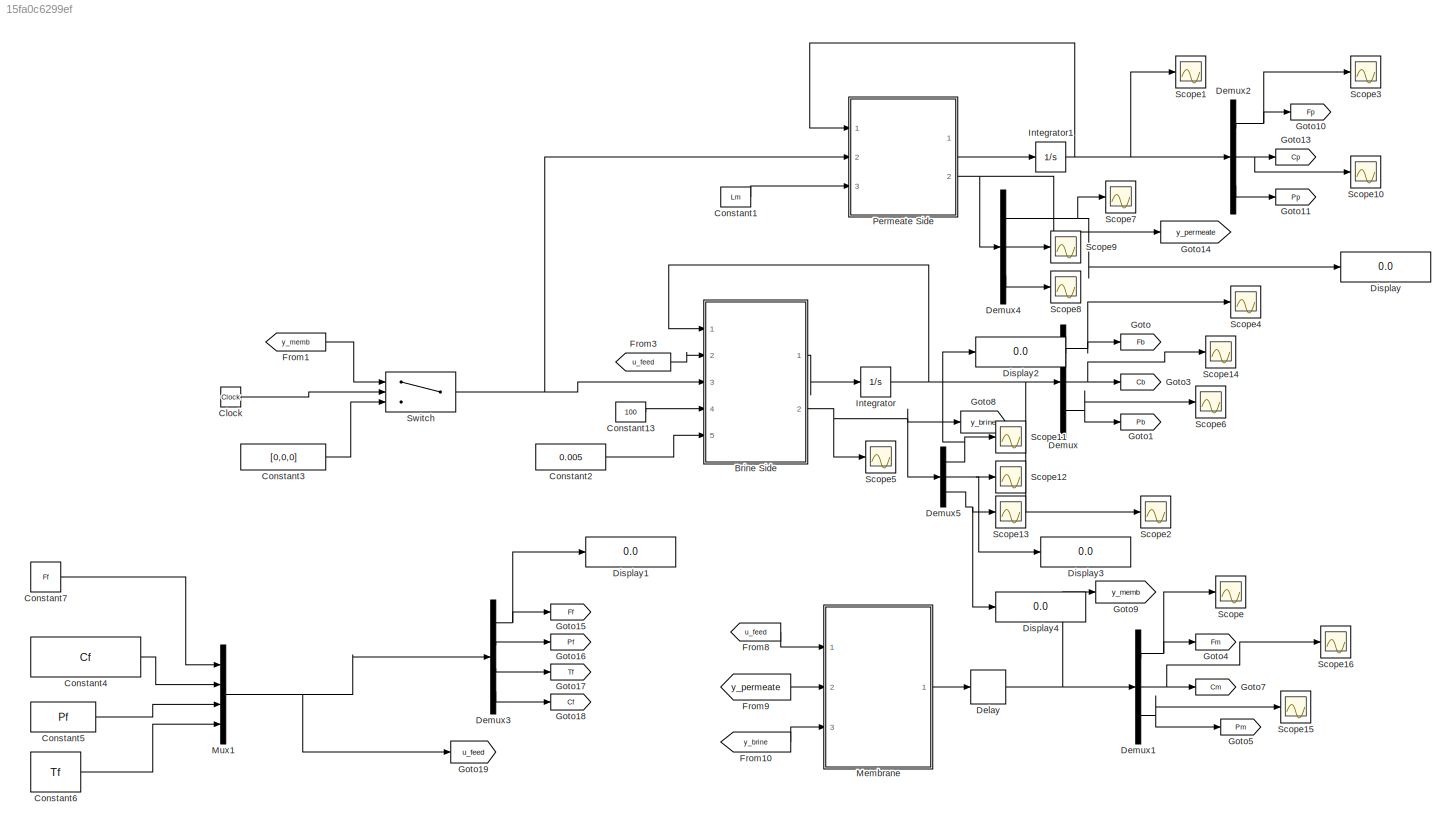
MODEL slx_15fa0c6299ef
KIND model
CONFIG AbsTol = auto
CONFIG EnableMultiTasking = off
CONFIG FixedStep = auto
CONFIG MaxStep = 1
CONFIG MinStep = auto
CONFIG RelTol = 1e-3
CONFIG SampleTimeConstraint = Unconstrained
CONFIG SolverName = VariableStepAuto
CONFIG StartTime = 0.0
CONFIG StopTime = 10000
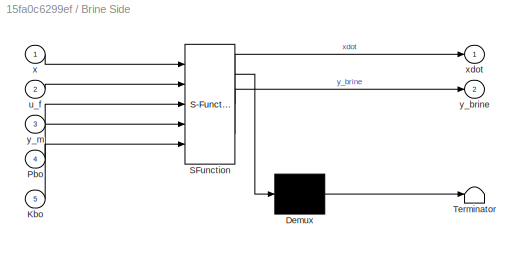
BLOCK [SubSystem] Brine Side
  ErrorFcn = Stateflow.Translate.translate
  PermitHierarchicalResolution = ExplicitOnly
  Ports = [5, 2]
  RequestExecContextInheritance = off
  SFBlockType = MATLAB Function
  TreatAsAtomicUnit = on
BLOCK [Demux] Brine Side/ Demux 
  Outputs = 1
  Ports = [1, 1]
BLOCK [S-Function] Brine Side/ SFunction 
  EnableBusSupport = on
  FunctionName = sf_sfun
  Parameters = Lb,phi_b
  PortCounts = [5 3]
  Ports = [5, 3]
  SFcnIsStateOwnerBlock = off
  SFunctionDeploymentMode = off
  Tag = Stateflow S-Function 1
BLOCK [Terminator] Brine Side/ Terminator 
BLOCK [Inport] Brine Side/Kbo
  Port = 5
BLOCK [Inport] Brine Side/Pbo
  Port = 4
BLOCK [Inport] Brine Side/u_f
  Port = 2
BLOCK [Inport] Brine Side/x
BLOCK [Outport] Brine Side/xdot
  VectorParamsAs1DForOutWhenUnconnected = off
BLOCK [Outport] Brine Side/y_brine
  Port = 2
  VectorParamsAs1DForOutWhenUnconnected = off
BLOCK [Inport] Brine Side/y_m
  Port = 3
BLOCK [Clock] Clock
BLOCK [Constant] Constant1
  Value = Lm
BLOCK [Constant] Constant13
  Value = 100
BLOCK [Constant] Constant2
  Value = 0.005
BLOCK [Constant] Constant3
  Value = [0,0,0]
BLOCK [Constant] Constant4
  Value = Cf
BLOCK [Constant] Constant5
  Value = Pf
BLOCK [Constant] Constant6
  Value = Tf
BLOCK [Constant] Constant7
  Value = Ff
BLOCK [Delay] Delay
  DelayLength = 1
  InputPortMap = u0
  Ports = [1, 1]
BLOCK [Demux] Demux
  Outputs = 3
  Ports = [1, 3]
BLOCK [Demux] Demux1
  Outputs = 3
  Ports = [1, 3]
BLOCK [Demux] Demux2
  Outputs = 3
  Ports = [1, 3]
BLOCK [Demux] Demux3
  Ports = [1, 4]
BLOCK [Demux] Demux4
  Outputs = 3
  Ports = [1, 3]
BLOCK [Demux] Demux5
  Outputs = 3
  Ports = [1, 3]
BLOCK [Display] Display
  Decimation = 1
  Ports = [1]
BLOCK [Display] Display1
  Decimation = 1
  Ports = [1]
BLOCK [Display] Display2
  Decimation = 1
  Ports = [1]
BLOCK [Display] Display3
  Decimation = 1
  Ports = [1]
BLOCK [Display] Display4
  Decimation = 1
  Ports = [1]
BLOCK [From] From1
  GotoTag = y_memb
BLOCK [From] From10
  GotoTag = y_brine
BLOCK [From] From3
  GotoTag = u_feed
BLOCK [From] From8
  GotoTag = u_feed
BLOCK [From] From9
  GotoTag = y_permeate
BLOCK [Goto] Goto
  GotoTag = Fb
BLOCK [Goto] Goto1
  GotoTag = Pb
BLOCK [Goto] Goto10
  GotoTag = Fp
BLOCK [Goto] Goto11
  GotoTag = Pp
BLOCK [Goto] Goto13
  GotoTag = Cp
BLOCK [Goto] Goto14
  GotoTag = y_permeate
BLOCK [Goto] Goto15
  GotoTag = Ff
BLOCK [Goto] Goto16
  GotoTag = Pf
BLOCK [Goto] Goto17
  GotoTag = Tf
BLOCK [Goto] Goto18
  GotoTag = Cf
BLOCK [Goto] Goto19
  GotoTag = u_feed
BLOCK [Goto] Goto3
  GotoTag = Cb
BLOCK [Goto] Goto4
  GotoTag = Fm
BLOCK [Goto] Goto5
  GotoTag = Pm
BLOCK [Goto] Goto7
  GotoTag = Cm
BLOCK [Goto] Goto8
  GotoTag = y_brine
BLOCK [Goto] Goto9
  GotoTag = y_memb
BLOCK [Integrator] Integrator
  InitialCondition = [1e2;10;2000]
  Ports = [1, 1]
BLOCK [Integrator] Integrator1
  InitialCondition = [1e1;0;100]
  Ports = [1, 1]
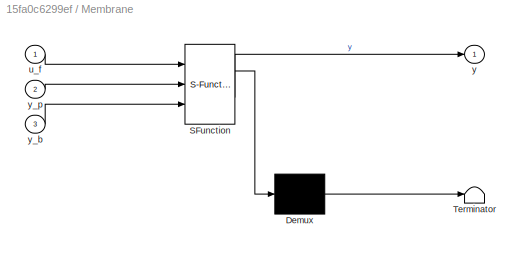
BLOCK [SubSystem] Membrane 
  ErrorFcn = Stateflow.Translate.translate
  PermitHierarchicalResolution = ExplicitOnly
  Ports = [3, 1]
  RequestExecContextInheritance = off
  SFBlockType = MATLAB Function
  TreatAsAtomicUnit = on
BLOCK [Demux] Membrane / Demux 
  Outputs = 1
  Ports = [1, 1]
BLOCK [S-Function] Membrane / SFunction 
  EnableBusSupport = on
  FunctionName = sf_sfun
  Parameters = A0,B0,R,T0,aT,bT,d0,di,eta,l,ls,ro_p
  PortCounts = [3 2]
  Ports = [3, 2]
  SFcnIsStateOwnerBlock = off
  SFunctionDeploymentMode = off
  Tag = Stateflow S-Function 3
BLOCK [Terminator] Membrane / Terminator 
BLOCK [Inport] Membrane /u_f
BLOCK [Outport] Membrane /y
  VectorParamsAs1DForOutWhenUnconnected = off
BLOCK [Inport] Membrane /y_b
  Port = 3
BLOCK [Inport] Membrane /y_p
  Port = 2
BLOCK [Mux] Mux1
  DisplayOption = bar
  Ports = [4, 1]
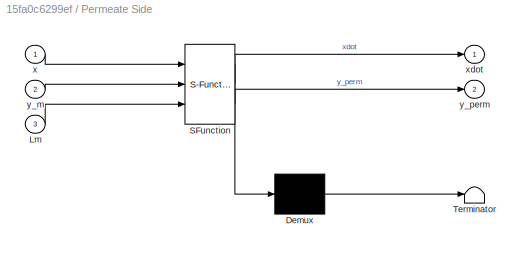
BLOCK [SubSystem] Permeate Side
  ErrorFcn = Stateflow.Translate.translate
  PermitHierarchicalResolution = ExplicitOnly
  Ports = [3, 2]
  RequestExecContextInheritance = off
  SFBlockType = MATLAB Function
  TreatAsAtomicUnit = on
BLOCK [Demux] Permeate Side/ Demux 
  Outputs = 1
  Ports = [1, 1]
BLOCK [S-Function] Permeate Side/ SFunction 
  EnableBusSupport = on
  FunctionName = sf_sfun
  Parameters = phi_m
  PortCounts = [3 3]
  Ports = [3, 3]
  SFcnIsStateOwnerBlock = off
  SFunctionDeploymentMode = off
  Tag = Stateflow S-Function 2
BLOCK [Terminator] Permeate Side/ Terminator 
BLOCK [Inport] Permeate Side/Lm
  Port = 3
BLOCK [Inport] Permeate Side/x
BLOCK [Outport] Permeate Side/xdot
  VectorParamsAs1DForOutWhenUnconnected = off
BLOCK [Inport] Permeate Side/y_m
  Port = 2
BLOCK [Outport] Permeate Side/y_perm
  Port = 2
  VectorParamsAs1DForOutWhenUnconnected = off
BLOCK [Scope] Scope
  Floating = off
  NumInputPorts = 1
  Ports = [1]
  ScopeSpecificationString = Simulink.scopes.TimeScopeBlockCfg('CurrentConfiguration', extmgr.ConfigurationSet(extmgr.Configuration('Core','General UI',true),extmgr.Configuration('Core','Source UI',true),extmgr.Configuration('Sources','WiredSimulink',true),extmgr.Configuration('Visuals','Time Domain',true,'SerializedDisplays',{struct('MinYLimReal','-0.00055','MaxYLimReal','0.00491','YLabelReal','','MinYLimMag','0.00000','MaxY...<+1401ch>
BLOCK [Scope] Scope1
  Floating = off
  NumInputPorts = 1
  Ports = [1]
  ScopeSpecificationString = Simulink.scopes.TimeScopeBlockCfg('CurrentConfiguration', extmgr.ConfigurationSet(extmgr.Configuration('Core','General UI',true),extmgr.Configuration('Core','Source UI',true),extmgr.Configuration('Sources','WiredSimulink',true,'DataLoggingVariableName','ScopeData1'),extmgr.Configuration('Visuals','Time Domain',true,'SerializedDisplays',{struct('MinYLimReal','-1248.875','MaxYLimReal','11249.875','Y...<+1472ch>
BLOCK [Scope] Scope10
  Floating = off
  NumInputPorts = 1
  Ports = [1]
  ScopeSpecificationString = Simulink.scopes.TimeScopeBlockCfg('CurrentConfiguration', extmgr.ConfigurationSet(extmgr.Configuration('Core','General UI',true),extmgr.Configuration('Core','Source UI',true),extmgr.Configuration('Sources','WiredSimulink',true,'DataLoggingVariableName','ScopeData6'),extmgr.Configuration('Visuals','Time Domain',true,'SerializedDisplays',{struct('MinYLimReal','-0.02775','MaxYLimReal','0.24975','YLab...<+1421ch>
BLOCK [Scope] Scope11
  Floating = off
  NumInputPorts = 1
  Ports = [1]
  ScopeSpecificationString = Simulink.scopes.TimeScopeBlockCfg('CurrentConfiguration', extmgr.ConfigurationSet(extmgr.Configuration('Core','General UI',true),extmgr.Configuration('Core','Source UI',true),extmgr.Configuration('Sources','WiredSimulink',true,'DataLoggingVariableName','ScopeData1'),extmgr.Configuration('Visuals','Time Domain',true,'SerializedDisplays',{struct('MinYLimReal','0.19299','MaxYLimReal','0.44257','YLabe...<+1419ch>
BLOCK [Scope] Scope12
  Floating = off
  NumInputPorts = 1
  Ports = [1]
  ScopeSpecificationString = Simulink.scopes.TimeScopeBlockCfg('CurrentConfiguration', extmgr.ConfigurationSet(extmgr.Configuration('Core','General UI',true),extmgr.Configuration('Core','Source UI',true),extmgr.Configuration('Sources','WiredSimulink',true,'DataLoggingVariableName','ScopeData2'),extmgr.Configuration('Visuals','Time Domain',true,'SerializedDisplays',{struct('MinYLimReal','8.2112','MaxYLimReal','26.09924','YLabe...<+1419ch>
BLOCK [Scope] Scope13
  Floating = off
  NumInputPorts = 1
  Ports = [1]
  ScopeSpecificationString = Simulink.scopes.TimeScopeBlockCfg('CurrentConfiguration', extmgr.ConfigurationSet(extmgr.Configuration('Core','General UI',true),extmgr.Configuration('Core','Source UI',true),extmgr.Configuration('Sources','WiredSimulink',true,'DataLoggingVariableName','ScopeData3'),extmgr.Configuration('Visuals','Time Domain',true,'SerializedDisplays',{struct('MinYLimReal','1365.48658','MaxYLimReal','7710.62078',...<+1443ch>
BLOCK [Scope] Scope14
  Floating = off
  NumInputPorts = 1
  Ports = [1]
  ScopeSpecificationString = Simulink.scopes.TimeScopeBlockCfg('CurrentConfiguration', extmgr.ConfigurationSet(extmgr.Configuration('Core','General UI',true),extmgr.Configuration('Core','Source UI',true),extmgr.Configuration('Sources','WiredSimulink',true,'DataLoggingVariableName','ScopeData1'),extmgr.Configuration('Visuals','Time Domain',true,'SerializedDisplays',{struct('MinYLimReal','8.50246','MaxYLimReal','23.47788','YLab...<+1422ch>
BLOCK [Scope] Scope15
  Floating = off
  NumInputPorts = 1
  Ports = [1]
  ScopeSpecificationString = Simulink.scopes.TimeScopeBlockCfg('CurrentConfiguration', extmgr.ConfigurationSet(extmgr.Configuration('Core','General UI',true),extmgr.Configuration('Core','Source UI',true),extmgr.Configuration('Sources','WiredSimulink',true,'DataLoggingVariableName','ScopeData2'),extmgr.Configuration('Visuals','Time Domain',true,'SerializedDisplays',{struct('MinYLimReal','-12.50321','MaxYLimReal','112.5289','YL...<+1446ch>
BLOCK [Scope] Scope16
  Floating = off
  NumInputPorts = 1
  Ports = [1]
  ScopeSpecificationString = Simulink.scopes.TimeScopeBlockCfg('CurrentConfiguration', extmgr.ConfigurationSet(extmgr.Configuration('Core','General UI',true),extmgr.Configuration('Core','Source UI',true),extmgr.Configuration('Sources','WiredSimulink',true,'DataLoggingVariableName','ScopeData3'),extmgr.Configuration('Visuals','Time Domain',true,'SerializedDisplays',{struct('MinYLimReal','-3.06995','MaxYLimReal','27.62958','YLa...<+1444ch>
BLOCK [Scope] Scope2
  Floating = off
  NumInputPorts = 1
  Ports = [1]
  ScopeSpecificationString = Simulink.scopes.TimeScopeBlockCfg('CurrentConfiguration', extmgr.ConfigurationSet(extmgr.Configuration('Core','General UI',true),extmgr.Configuration('Core','Source UI',true),extmgr.Configuration('Sources','WiredSimulink',true,'DataLoggingVariableName','ScopeData2'),extmgr.Configuration('Visuals','Time Domain',true,'SerializedDisplays',{struct('MinYLimReal','-873.26342','MaxYLimReal','7959.37078',...<+1473ch>
BLOCK [Scope] Scope3
  Floating = off
  NumInputPorts = 1
  Ports = [1]
  ScopeSpecificationString = Simulink.scopes.TimeScopeBlockCfg('CurrentConfiguration', extmgr.ConfigurationSet(extmgr.Configuration('Core','General UI',true),extmgr.Configuration('Core','Source UI',true),extmgr.Configuration('Sources','WiredSimulink',true,'DataLoggingVariableName','ScopeData3'),extmgr.Configuration('Visuals','Time Domain',true,'SerializedDisplays',{struct('MinYLimReal','90000.00000','MaxYLimReal','110000.0000...<+1455ch>
BLOCK [Scope] Scope4
  Floating = off
  NumInputPorts = 1
  Ports = [1]
  ScopeSpecificationString = Simulink.scopes.TimeScopeBlockCfg('CurrentConfiguration', extmgr.ConfigurationSet(extmgr.Configuration('Core','General UI',true),extmgr.Configuration('Core','Source UI',true),extmgr.Configuration('Sources','WiredSimulink',true,'DataLoggingVariableName','ScopeData4'),extmgr.Configuration('Visuals','Time Domain',true,'SerializedDisplays',{struct('MinYLimReal','-91.38831','MaxYLimReal','1822.49481','...<+1434ch>
BLOCK [Scope] Scope5
  Floating = off
  NumInputPorts = 1
  Ports = [1]
  ScopeSpecificationString = Simulink.scopes.TimeScopeBlockCfg('CurrentConfiguration', extmgr.ConfigurationSet(extmgr.Configuration('Core','General UI',true),extmgr.Configuration('Core','Source UI',true),extmgr.Configuration('Sources','WiredSimulink',true,'DataLoggingVariableName','ScopeData1'),extmgr.Configuration('Visuals','Time Domain',true,'SerializedDisplays',{struct('MinYLimReal','-884.12112','MaxYLimReal','7960.57719',...<+1497ch>
BLOCK [Scope] Scope6
  Floating = off
  NumInputPorts = 1
  Ports = [1]
  ScopeSpecificationString = Simulink.scopes.TimeScopeBlockCfg('CurrentConfiguration', extmgr.ConfigurationSet(extmgr.Configuration('Core','General UI',true),extmgr.Configuration('Core','Source UI',true),extmgr.Configuration('Sources','WiredSimulink',true,'DataLoggingVariableName','ScopeData2'),extmgr.Configuration('Visuals','Time Domain',true,'SerializedDisplays',{struct('MinYLimReal','1365.48658','MaxYLimReal','7710.62078',...<+1442ch>
BLOCK [Scope] Scope7
  Floating = off
  NumInputPorts = 1
  Ports = [1]
  ScopeSpecificationString = Simulink.scopes.TimeScopeBlockCfg('CurrentConfiguration', extmgr.ConfigurationSet(extmgr.Configuration('Core','General UI',true),extmgr.Configuration('Core','Source UI',true),extmgr.Configuration('Sources','WiredSimulink',true,'DataLoggingVariableName','ScopeData3'),extmgr.Configuration('Visuals','Time Domain',true,'SerializedDisplays',{struct('MinYLimReal','-0.02968','MaxYLimReal','0.26716','YLab...<+1440ch>
BLOCK [Scope] Scope8
  Floating = off
  NumInputPorts = 1
  Ports = [1]
  ScopeSpecificationString = Simulink.scopes.TimeScopeBlockCfg('CurrentConfiguration', extmgr.ConfigurationSet(extmgr.Configuration('Core','General UI',true),extmgr.Configuration('Core','Source UI',true),extmgr.Configuration('Sources','WiredSimulink',true,'DataLoggingVariableName','ScopeData4'),extmgr.Configuration('Visuals','Time Domain',true,'SerializedDisplays',{struct('MinYLimReal','99.99679','MaxYLimReal','100.0289','YLa...<+1427ch>
BLOCK [Scope] Scope9
  Floating = off
  NumInputPorts = 1
  Ports = [1]
  ScopeSpecificationString = Simulink.scopes.TimeScopeBlockCfg('CurrentConfiguration', extmgr.ConfigurationSet(extmgr.Configuration('Core','General UI',true),extmgr.Configuration('Core','Source UI',true),extmgr.Configuration('Sources','WiredSimulink',true,'DataLoggingVariableName','ScopeData5'),extmgr.Configuration('Visuals','Time Domain',true,'SerializedDisplays',{struct('MinYLimReal','-0.0307','MaxYLimReal','0.2763','YLabel...<+1415ch>
BLOCK [Switch] Switch
  Criteria = u2 > Threshold
  InputSameDT = off
  SaturateOnIntegerOverflow = off
  Threshold = .001
LINE Brine Side:1 -> Integrator:1
NET Brine Side:2 -> Demux5:1, Goto8:1, Scope5:1
LINE Clock:1 -> Switch:2
LINE Constant13:1 -> Brine Side:4
LINE Constant1:1 -> Permeate Side:3
LINE Constant2:1 -> Brine Side:5
LINE Constant3:1 -> Switch:3
LINE Constant4:1 -> Mux1:2
LINE Constant5:1 -> Mux1:3
LINE Constant6:1 -> Mux1:4
LINE Constant7:1 -> Mux1:1
NET Delay:1 -> Demux1:1, Goto9:1
NET Demux1:1 -> Goto4:1, Scope:1
NET Demux1:2 -> Goto7:1, Scope16:1
NET Demux1:3 -> Goto5:1, Scope15:1
NET Demux2:1 -> Goto10:1, Scope3:1
NET Demux2:2 -> Goto13:1, Scope10:1
LINE Demux2:3 -> Goto11:1
NET Demux3:1 -> Display1:1, Goto15:1
LINE Demux3:2 -> Goto16:1
LINE Demux3:3 -> Goto17:1
LINE Demux3:4 -> Goto18:1
NET Demux4:1 -> Display:1, Scope7:1
LINE Demux4:2 -> Scope9:1
LINE Demux4:3 -> Scope8:1
NET Demux5:1 -> Display2:1, Scope11:1
NET Demux5:2 -> Display3:1, Scope12:1
NET Demux5:3 -> Display4:1, Scope13:1
NET Demux:1 -> Goto:1, Scope4:1
NET Demux:2 -> Goto3:1, Scope14:1
NET Demux:3 -> Goto1:1, Scope6:1
LINE From10:1 -> Membrane :3
LINE From1:1 -> Switch:1
LINE From3:1 -> Brine Side:2
LINE From8:1 -> Membrane :1
LINE From9:1 -> Membrane :2
NET Integrator1:1 -> Demux2:1, Permeate Side:1, Scope1:1
NET Integrator:1 -> Brine Side:1, Demux:1, Scope2:1
LINE Membrane :1 -> Delay:1
NET Mux1:1 -> Demux3:1, Goto19:1
LINE Permeate Side:1 -> Integrator1:1
NET Permeate Side:2 -> Demux4:1, Goto14:1
NET Switch:1 -> Brine Side:3, Permeate Side:2
note: NET lines group one-source signal fan-out (src -> all destinations, sorted); 1:1 wires keep LINE
CHART Brine Side states=1 transitions=1
  STATE_LABEL 'eML_blk_kernel()'
  STATE_LABEL 'SCRIPT:\nfunction [xdot,y_brine] = brine(x,u_f,y_m,Pbo,Lb, phi_b, Kbo)\n% Feed water stream\nFf=u_f(1);\nCf=u_f(2);\nPf=u_f(3);\nTf=u_f(4);\n\n% Membrane stream\nFm=y_m(1);\nCm=y_m(2);\nPm=y_m(3);\n% states of brine\nmb=x(1);\nCb=x(2);\nPb=x(3);\nFb=Kbo*sqrt(Pb-Pbo);\nmb_dot=Ff-Fb-Fm;\nif (Fb+Fm)>Ff\n   Fb=Ff-Fm; \nend\nCb_dot=1/mb*(Ff*(Cf-Cb)-Fm*(.01*Cm-Cb));\nPb_dot=1/Lb*(Pf-Pb-phi_b*Ff);\nxdot=[mb_dot;Cb_dot;Pb_dot];...<+26ch>'
CHART Permeate Side states=1 transitions=1
  STATE_LABEL 'eML_blk_kernel()'
  STATE_LABEL 'SCRIPT:\nfunction [xdot,y_perm] = permeate(x,y_m,Lm, phi_m)\n\n% Membrane stream\nFm=y_m(1);\nCm=y_m(2);\nPm=y_m(3);\n% states of brine\nmp=x(1);\nCp=x(2);\nPp=x(3);\n\nmp_dot=0;\n\nCp_dot=Fm/mp*(Cm-Cp);\nPp_dot=1/Lm*(-Pp+phi_m*Fm);\nxdot=[mp_dot;Cp_dot;Pp_dot];\ny_perm=[Fm;x(2);x(3)];\n\n\n'
CHART Membrane
 states=1 transitions=1
  STATE_LABEL 'eML_blk_kernel()'
  STATE_LABEL 'SCRIPT:\nfunction y = membrane(u_f,y_p,y_b,R, ls, l, ro_p, A0, B0, T0, aT, bT, eta, d0, di)\n%Feed stream\nFb=y_b(1);\nCb=y_b(2);\nPb=y_b(3);\n%Brine stream\nFp=y_p(1);\nCp=y_p(2);\nPp=y_p(3);\n% Membrane stream\nFf=u_f(1);\nCf=u_f(2);\nPf=u_f(3);\nTf=u_f(4);\nA=A0*exp(aT*(Tf-T0)/Tf);\nB=B0*exp(bT*(Tf-T0)/Tf);\npi_b=75.84*Cb;\npi_p=75.84*Cp;\npi_f=75.84*Cf;\ndelta_pi=(pi_f+pi_b)/2-pi_p;\ndelta_p=(Pf+Pb)/2-Pp;\n% output...<+181ch>'
CHART  states=0 transitions=0
CHART  states=0 transitions=0
CHART  states=0 transitions=0
